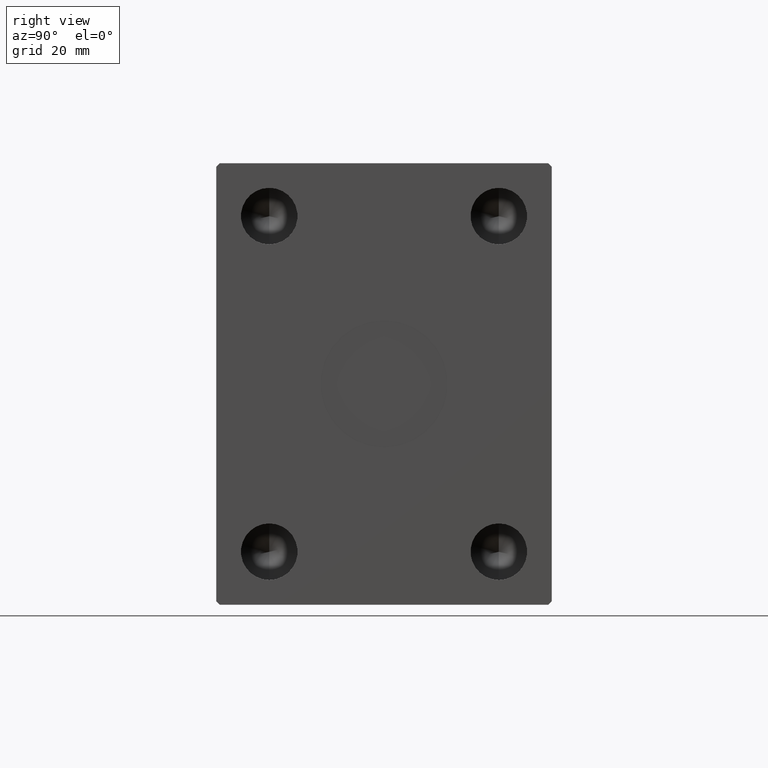
[diagram: clean part render]
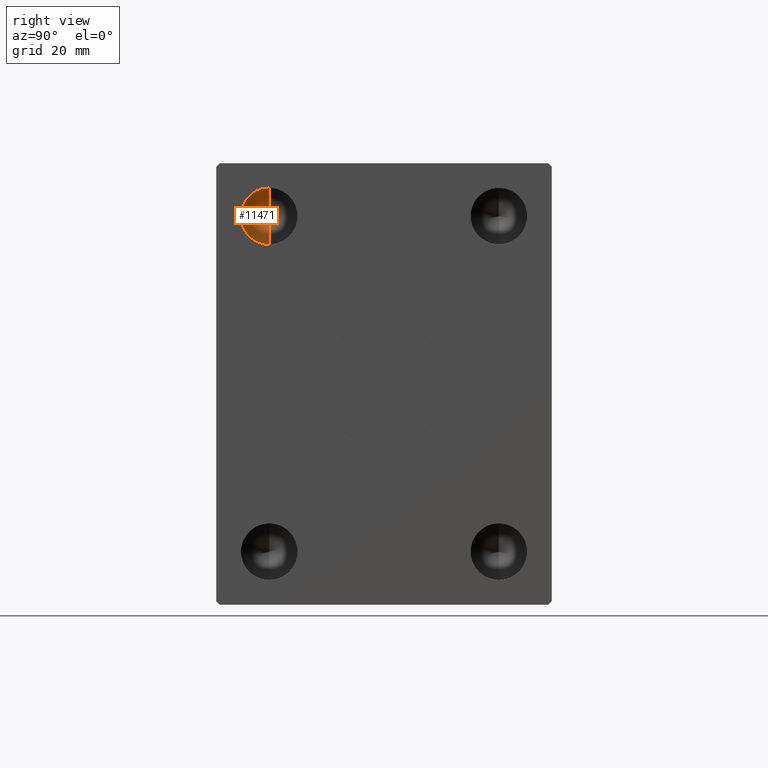
[diagram: same view with one face highlighted and labeled with its STEP entity id]
A machine part, right view. The second image highlights one B-rep face of the part: STEP entity #11471.
In plain terms, the highlighted conical surface has half-angle 59 deg.
Its self-contained STEP definition (entity closure, byte-faithful):
#537 = CONICAL_SURFACE ( 'NONE', #42453, 7.999999999999992895, 1.029744258676652757 ) ;
#3606 = LINE ( 'NONE', #13183, #20847 ) ;
#5011 = DIRECTION ( 'NONE',  ( 0.000000000000000000, 0.000000000000000000, -1.000000000000000000 ) ) ;
#6798 = ORIENTED_EDGE ( 'NONE', *, *, #39041, .T. ) ;
#8110 = VERTEX_POINT ( 'NONE', #41762 ) ;
#8671 = VERTEX_POINT ( 'NONE', #42046 ) ;
#9003 = EDGE_CURVE ( 'NONE', #8110, #8671, #31870, .T. ) ;
#10894 = VECTOR ( 'NONE', #43657, 1000.000000000000000 ) ;
#11467 = CARTESIAN_POINT ( 'NONE',  ( 98.32999999999999829, -32.50000000000000000, 47.50000000000000000 ) ) ;
#11471 = ADVANCED_FACE ( 'NONE', ( #28087 ), #537, .F. ) ;
#11621 = DIRECTION ( 'NONE',  ( 0.000000000000000000, 0.000000000000000000, -1.000000000000000000 ) ) ;
#11689 = DIRECTION ( 'NONE',  ( 1.000000000000000000, -0.000000000000000000, -0.000000000000000000 ) ) ;
#13183 = CARTESIAN_POINT ( 'NONE',  ( 98.32999999999999829, -32.50000000000000000, 55.49999999999999289 ) ) ;
#17066 = ORIENTED_EDGE ( 'NONE', *, *, #9003, .T. ) ;
#20847 = VECTOR ( 'NONE', #23648, 1000.000000000000000 ) ;
#23648 = DIRECTION ( 'NONE',  ( 0.5150380749100555988, 1.049727191138617586E-16, 0.8571673007021114454 ) ) ;
#24099 = LINE ( 'NONE', #37640, #10894 ) ;
#25190 = DIRECTION ( 'NONE',  ( 1.000000000000000000, -0.000000000000000000, -0.000000000000000000 ) ) ;
#25314 = EDGE_LOOP ( 'NONE', ( #40904, #6798, #17066 ) ) ;
#28087 = FACE_OUTER_BOUND ( 'NONE', #25314, .T. ) ;
#28953 = CARTESIAN_POINT ( 'NONE',  ( 98.32999999999999829, -32.50000000000000000, 47.50000000000000000 ) ) ;
#31870 = CIRCLE ( 'NONE', #36112, 7.999999999999992895 ) ;
#36112 = AXIS2_PLACEMENT_3D ( 'NONE', #11467, #11689, #5011 ) ;
#37640 = CARTESIAN_POINT ( 'NONE',  ( 98.32999999999999829, -32.50000000000000000, 39.50000000000000711 ) ) ;
#39041 = EDGE_CURVE ( 'NONE', #43010, #8110, #3606, .T. ) ;
#39119 = EDGE_CURVE ( 'NONE', #43010, #8671, #24099, .T. ) ;
#40904 = ORIENTED_EDGE ( 'NONE', *, *, #39119, .F. ) ;
#41762 = CARTESIAN_POINT ( 'NONE',  ( 98.32999999999999829, -32.50000000000000000, 55.49999999999999289 ) ) ;
#42046 = CARTESIAN_POINT ( 'NONE',  ( 98.32999999999999829, -32.50000000000000000, 39.50000000000000711 ) ) ;
#42453 = AXIS2_PLACEMENT_3D ( 'NONE', #28953, #25190, #11621 ) ;
#43010 = VERTEX_POINT ( 'NONE', #43842 ) ;
#43657 = DIRECTION ( 'NONE',  ( 0.5150380749100555988, 0.000000000000000000, -0.8571673007021114454 ) ) ;
#43842 = CARTESIAN_POINT ( 'NONE',  ( 93.52311504777951257, -32.50000000000000711, 47.50000000000000000 ) ) ;